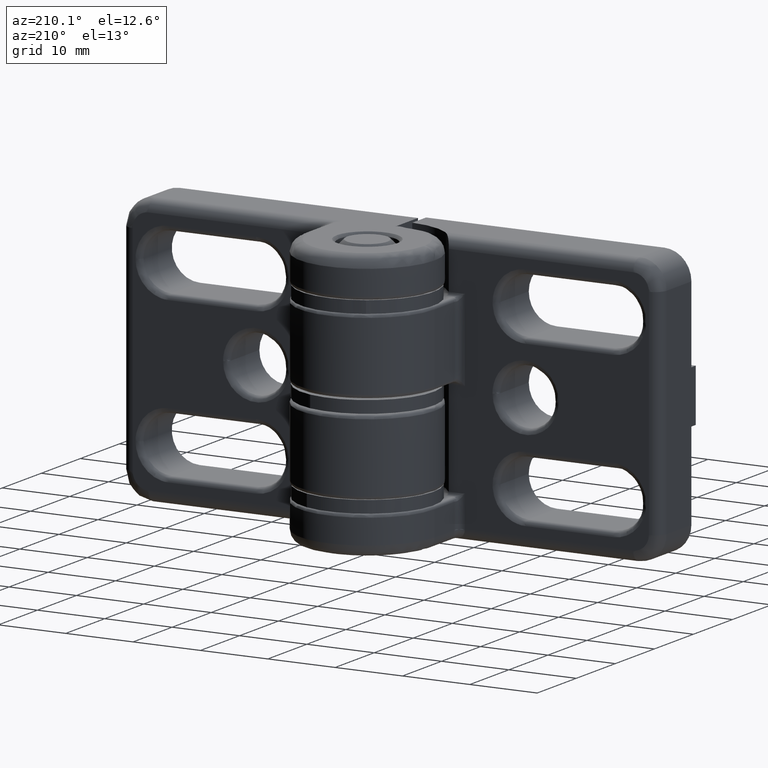
[diagram: clean part render]
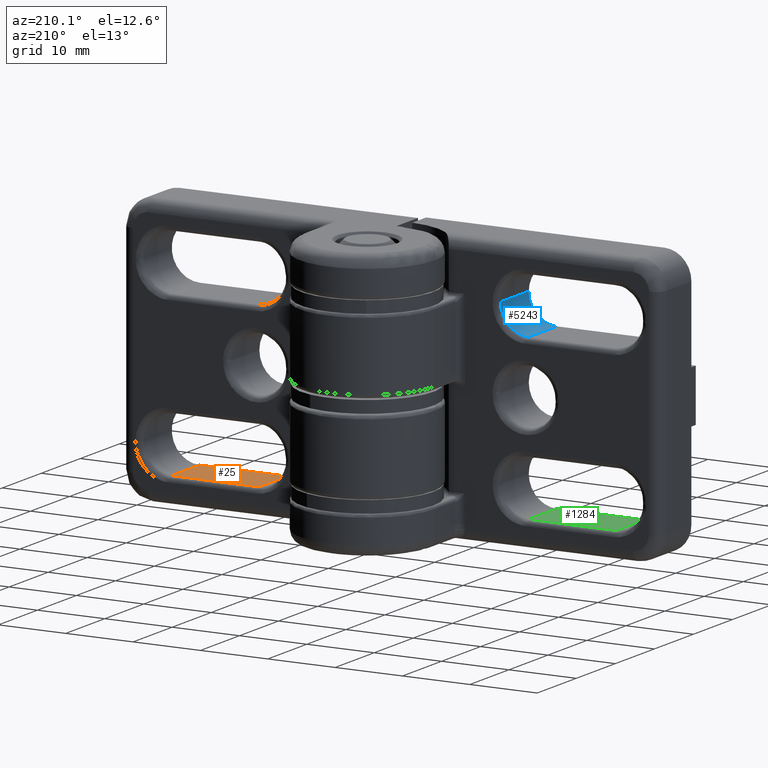
[diagram: same view with three faces highlighted in distinct colors, each labeled with its STEP entity id]
A machine part, auxiliary view with three faces highlighted in distinct colors.
Their STEP definitions:

[orange] entity #25 — the highlighted planar face has unit normal (0, 0, -1).
#25 = ADVANCED_FACE ( 'NONE', ( #2532 ), #3214, .F. ) ;
#65 = VERTEX_POINT ( 'NONE', #2887 ) ;
#111 = CARTESIAN_POINT ( 'NONE',  ( -0.6000000000000023100, -14.00000000000000000, -3.849999999999999200 ) ) ;
#531 = DIRECTION ( 'NONE',  ( 1.000000000000000000, 1.320855438561020700E-016, 0.0000000000000000000 ) ) ;
#626 = CARTESIAN_POINT ( 'NONE',  ( -33.00000000000000000, -5.999999999999998200, -3.849999999999999200 ) ) ;
#711 = DIRECTION ( 'NONE',  ( 1.000000000000000000, 0.0000000000000000000, -0.0000000000000000000 ) ) ;
#744 = VECTOR ( 'NONE', #4980, 1000.000000000000000 ) ;
#1008 = CARTESIAN_POINT ( 'NONE',  ( -20.00000000000000000, -6.750000000000002700, -3.849999999999998300 ) ) ;
#1070 = EDGE_CURVE ( 'NONE', #4792, #1238, #3664, .T. ) ;
#1103 = ORIENTED_EDGE ( 'NONE', *, *, #4172, .F. ) ;
#1238 = VERTEX_POINT ( 'NONE', #1659 ) ;
#1279 = ORIENTED_EDGE ( 'NONE', *, *, #1451, .F. ) ;
#1451 = EDGE_CURVE ( 'NONE', #65, #4918, #1972, .T. ) ;
#1562 = CARTESIAN_POINT ( 'NONE',  ( -33.00000000000000000, -14.00000000000000400, -3.849999999999999200 ) ) ;
#1659 = CARTESIAN_POINT ( 'NONE',  ( -20.00000000000000000, -14.00000000000000200, -3.849999999999999200 ) ) ;
#1914 = CARTESIAN_POINT ( 'NONE',  ( -33.00000000000000000, -6.750000000000002700, -3.849999999999999200 ) ) ;
#1965 = CARTESIAN_POINT ( 'NONE',  ( -20.00000000000000000, -5.999999999999996400, -3.849999999999999200 ) ) ;
#1972 = LINE ( 'NONE', #2035, #5623 ) ;
#2035 = CARTESIAN_POINT ( 'NONE',  ( -33.00000000000000000, -5.999999999999998200, -3.849999999999999200 ) ) ;
#2095 = AXIS2_PLACEMENT_3D ( 'NONE', #626, #2449, #711 ) ;
#2449 = DIRECTION ( 'NONE',  ( 0.0000000000000000000, -0.0000000000000000000, 1.000000000000000000 ) ) ;
#2532 = FACE_OUTER_BOUND ( 'NONE', #3408, .T. ) ;
#2562 = LINE ( 'NONE', #111, #5456 ) ;
#2887 = CARTESIAN_POINT ( 'NONE',  ( -33.00000000000000000, -6.750000000000003600, -3.849999999999999200 ) ) ;
#2936 = VECTOR ( 'NONE', #4203, 1000.000000000000000 ) ;
#3214 = PLANE ( 'NONE',  #2095 ) ;
#3408 = EDGE_LOOP ( 'NONE', ( #1103, #4513, #5625, #1279 ) ) ;
#3664 = LINE ( 'NONE', #1965, #2936 ) ;
#4172 = EDGE_CURVE ( 'NONE', #4792, #65, #5307, .T. ) ;
#4203 = DIRECTION ( 'NONE',  ( 1.320855438561020700E-016, -1.000000000000000000, -0.0000000000000000000 ) ) ;
#4217 = DIRECTION ( 'NONE',  ( -0.0000000000000000000, -1.000000000000000000, -0.0000000000000000000 ) ) ;
#4292 = EDGE_CURVE ( 'NONE', #4918, #1238, #2562, .T. ) ;
#4513 = ORIENTED_EDGE ( 'NONE', *, *, #1070, .T. ) ;
#4792 = VERTEX_POINT ( 'NONE', #1008 ) ;
#4918 = VERTEX_POINT ( 'NONE', #1562 ) ;
#4980 = DIRECTION ( 'NONE',  ( -1.000000000000000000, -0.0000000000000000000, 0.0000000000000000000 ) ) ;
#5307 = LINE ( 'NONE', #1914, #744 ) ;
#5456 = VECTOR ( 'NONE', #531, 1000.000000000000000 ) ;
#5623 = VECTOR ( 'NONE', #4217, 1000.000000000000000 ) ;
#5625 = ORIENTED_EDGE ( 'NONE', *, *, #4292, .F. ) ;

[blue] entity #5243 — the highlighted cylindrical surface (edge-blend (fillet) strip) has radius 4.15 mm, axis along (0, -1, 0).
#144 = DIRECTION ( 'NONE',  ( 1.320855438561020700E-016, -1.000000000000000000, -0.0000000000000000000 ) ) ;
#244 = CARTESIAN_POINT ( 'NONE',  ( -15.85000000000000000, -6.750000000000001800, -8.000000000000000000 ) ) ;
#611 = DIRECTION ( 'NONE',  ( 1.000000000000000000, 2.090028284309405500E-016, 0.0000000000000000000 ) ) ;
#889 = DIRECTION ( 'NONE',  ( 1.000000000000000000, 2.090028284309405500E-016, 0.0000000000000000000 ) ) ;
#943 = ORIENTED_EDGE ( 'NONE', *, *, #957, .F. ) ;
#957 = EDGE_CURVE ( 'NONE', #4757, #2443, #3415, .T. ) ;
#990 = DIRECTION ( 'NONE',  ( -1.320855438561020700E-016, 1.000000000000000000, 0.0000000000000000000 ) ) ;
#1220 = VERTEX_POINT ( 'NONE', #5603 ) ;
#1306 = VECTOR ( 'NONE', #2107, 1000.000000000000000 ) ;
#1416 = CARTESIAN_POINT ( 'NONE',  ( -20.00000000000000000, -6.750000000000004400, -12.15000000000000000 ) ) ;
#1435 = LINE ( 'NONE', #4729, #1306 ) ;
#1686 = AXIS2_PLACEMENT_3D ( 'NONE', #3469, #4821, #889 ) ;
#1882 = CARTESIAN_POINT ( 'NONE',  ( -20.00000000000000000, -14.00000000000000200, -12.15000000000000000 ) ) ;
#2107 = DIRECTION ( 'NONE',  ( -0.0000000000000000000, -1.000000000000000000, -0.0000000000000000000 ) ) ;
#2237 = CARTESIAN_POINT ( 'NONE',  ( -20.00000000000000000, -14.00000000000000400, -8.000000000000000000 ) ) ;
#2294 = DIRECTION ( 'NONE',  ( 1.000000000000000000, 0.0000000000000000000, 0.0000000000000000000 ) ) ;
#2433 = CIRCLE ( 'NONE', #4375, 4.150000000000001200 ) ;
#2443 = VERTEX_POINT ( 'NONE', #244 ) ;
#2530 = EDGE_CURVE ( 'NONE', #4757, #4931, #1435, .T. ) ;
#2810 = EDGE_LOOP ( 'NONE', ( #4452, #943, #4166, #5470 ) ) ;
#3009 = DIRECTION ( 'NONE',  ( 1.320855438561020700E-016, -1.000000000000000000, -0.0000000000000000000 ) ) ;
#3104 = LINE ( 'NONE', #3431, #3323 ) ;
#3192 = AXIS2_PLACEMENT_3D ( 'NONE', #4017, #144, #611 ) ;
#3323 = VECTOR ( 'NONE', #3009, 1000.000000000000000 ) ;
#3415 = CIRCLE ( 'NONE', #3192, 4.150000000000001200 ) ;
#3431 = CARTESIAN_POINT ( 'NONE',  ( -15.85000000000000000, -5.999999999999995600, -8.000000000000000000 ) ) ;
#3457 = EDGE_CURVE ( 'NONE', #2443, #1220, #3104, .T. ) ;
#3469 = CARTESIAN_POINT ( 'NONE',  ( -20.00000000000000000, -5.999999999999996400, -8.000000000000000000 ) ) ;
#3494 = FACE_OUTER_BOUND ( 'NONE', #2810, .T. ) ;
#3987 = CYLINDRICAL_SURFACE ( 'NONE', #1686, 4.150000000000001200 ) ;
#4017 = CARTESIAN_POINT ( 'NONE',  ( -20.00000000000000000, -6.750000000000002700, -8.000000000000000000 ) ) ;
#4137 = EDGE_CURVE ( 'NONE', #1220, #4931, #2433, .T. ) ;
#4166 = ORIENTED_EDGE ( 'NONE', *, *, #2530, .T. ) ;
#4375 = AXIS2_PLACEMENT_3D ( 'NONE', #2237, #990, #2294 ) ;
#4452 = ORIENTED_EDGE ( 'NONE', *, *, #3457, .F. ) ;
#4729 = CARTESIAN_POINT ( 'NONE',  ( -20.00000000000000000, -5.999999999999998200, -12.15000000000000000 ) ) ;
#4757 = VERTEX_POINT ( 'NONE', #1416 ) ;
#4821 = DIRECTION ( 'NONE',  ( 1.320855438561020700E-016, -1.000000000000000000, -0.0000000000000000000 ) ) ;
#4931 = VERTEX_POINT ( 'NONE', #1882 ) ;
#5243 = ADVANCED_FACE ( 'NONE', ( #3494 ), #3987, .F. ) ;
#5470 = ORIENTED_EDGE ( 'NONE', *, *, #4137, .F. ) ;
#5603 = CARTESIAN_POINT ( 'NONE',  ( -15.85000000000000000, -14.00000000000000400, -8.000000000000000000 ) ) ;

[green] entity #1284 — the highlighted planar face has unit normal (0, 0, -1).
#148 = LINE ( 'NONE', #4761, #4165 ) ;
#481 = EDGE_LOOP ( 'NONE', ( #2392, #5648, #3899, #2581 ) ) ;
#677 = EDGE_CURVE ( 'NONE', #3059, #1891, #148, .T. ) ;
#695 = LINE ( 'NONE', #1084, #2580 ) ;
#773 = PLANE ( 'NONE',  #5309 ) ;
#788 = LINE ( 'NONE', #4221, #4540 ) ;
#1084 = CARTESIAN_POINT ( 'NONE',  ( -33.00000000000000000, -5.999999999999998200, -36.14999999999999900 ) ) ;
#1193 = EDGE_CURVE ( 'NONE', #2126, #3059, #695, .T. ) ;
#1284 = ADVANCED_FACE ( 'NONE', ( #4015 ), #773, .F. ) ;
#1636 = DIRECTION ( 'NONE',  ( -1.000000000000000000, 0.0000000000000000000, -0.0000000000000000000 ) ) ;
#1891 = VERTEX_POINT ( 'NONE', #3964 ) ;
#2032 = VECTOR ( 'NONE', #2481, 1000.000000000000000 ) ;
#2126 = VERTEX_POINT ( 'NONE', #3023 ) ;
#2384 = CARTESIAN_POINT ( 'NONE',  ( -33.00000000000000000, -6.750000000000004400, -36.14999999999999900 ) ) ;
#2392 = ORIENTED_EDGE ( 'NONE', *, *, #677, .F. ) ;
#2481 = DIRECTION ( 'NONE',  ( -1.000000000000000000, -1.320855438561020700E-016, -0.0000000000000000000 ) ) ;
#2488 = EDGE_CURVE ( 'NONE', #1891, #3416, #788, .T. ) ;
#2580 = VECTOR ( 'NONE', #4593, 1000.000000000000000 ) ;
#2581 = ORIENTED_EDGE ( 'NONE', *, *, #2488, .F. ) ;
#3023 = CARTESIAN_POINT ( 'NONE',  ( -33.00000000000000000, -14.00000000000000400, -36.14999999999999900 ) ) ;
#3037 = LINE ( 'NONE', #3390, #2032 ) ;
#3059 = VERTEX_POINT ( 'NONE', #2384 ) ;
#3362 = EDGE_CURVE ( 'NONE', #3416, #2126, #3037, .T. ) ;
#3390 = CARTESIAN_POINT ( 'NONE',  ( -0.6000000000000023100, -14.00000000000000000, -36.14999999999999900 ) ) ;
#3416 = VERTEX_POINT ( 'NONE', #4679 ) ;
#3729 = DIRECTION ( 'NONE',  ( -0.0000000000000000000, -1.000000000000000000, -0.0000000000000000000 ) ) ;
#3899 = ORIENTED_EDGE ( 'NONE', *, *, #3362, .F. ) ;
#3964 = CARTESIAN_POINT ( 'NONE',  ( -20.00000000000000000, -6.750000000000004400, -36.14999999999999900 ) ) ;
#4015 = FACE_OUTER_BOUND ( 'NONE', #481, .T. ) ;
#4165 = VECTOR ( 'NONE', #4738, 1000.000000000000000 ) ;
#4221 = CARTESIAN_POINT ( 'NONE',  ( -20.00000000000000000, -5.999999999999998200, -36.14999999999999900 ) ) ;
#4225 = CARTESIAN_POINT ( 'NONE',  ( -33.00000000000000000, -5.999999999999998200, -36.14999999999999900 ) ) ;
#4540 = VECTOR ( 'NONE', #3729, 1000.000000000000000 ) ;
#4593 = DIRECTION ( 'NONE',  ( 0.0000000000000000000, 1.000000000000000000, 0.0000000000000000000 ) ) ;
#4679 = CARTESIAN_POINT ( 'NONE',  ( -20.00000000000000000, -14.00000000000000200, -36.14999999999999900 ) ) ;
#4738 = DIRECTION ( 'NONE',  ( 1.000000000000000000, -0.0000000000000000000, 0.0000000000000000000 ) ) ;
#4761 = CARTESIAN_POINT ( 'NONE',  ( -33.00000000000000000, -6.750000000000004400, -36.14999999999999900 ) ) ;
#5309 = AXIS2_PLACEMENT_3D ( 'NONE', #4225, #5565, #1636 ) ;
#5565 = DIRECTION ( 'NONE',  ( 0.0000000000000000000, 0.0000000000000000000, -1.000000000000000000 ) ) ;
#5648 = ORIENTED_EDGE ( 'NONE', *, *, #1193, .F. ) ;